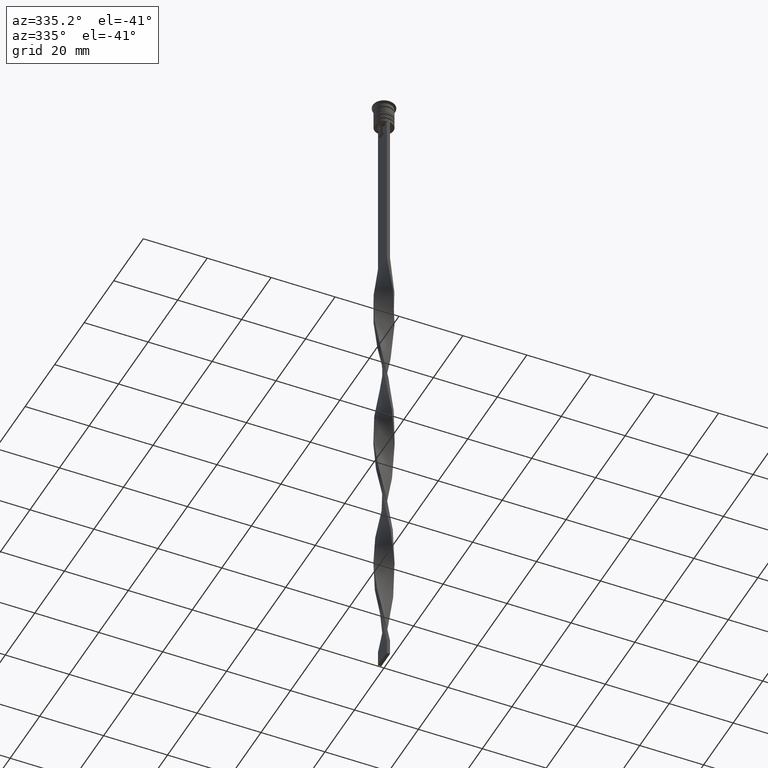
[diagram: clean part render]
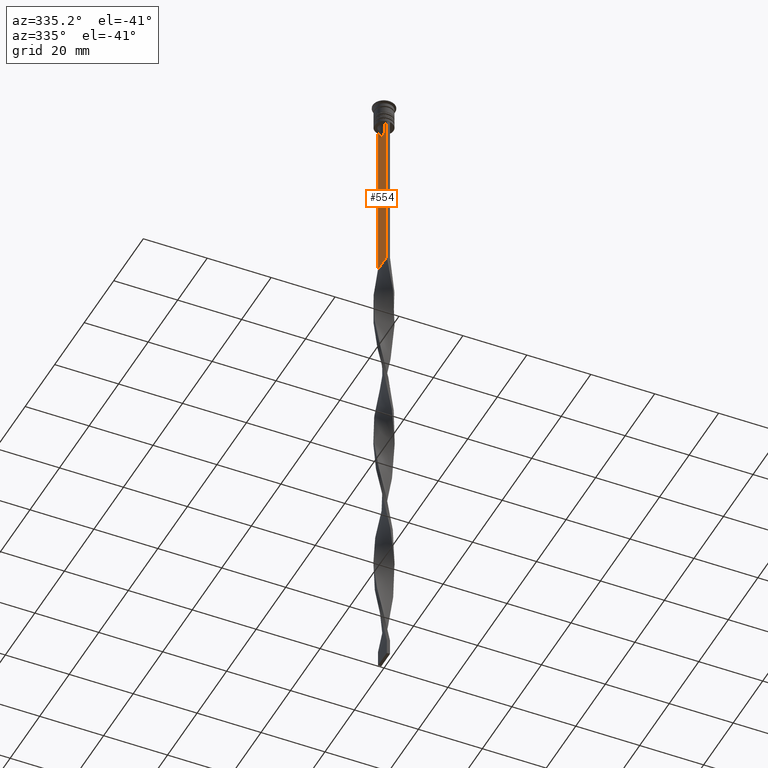
[diagram: same view with one face highlighted and labeled with its STEP entity id]
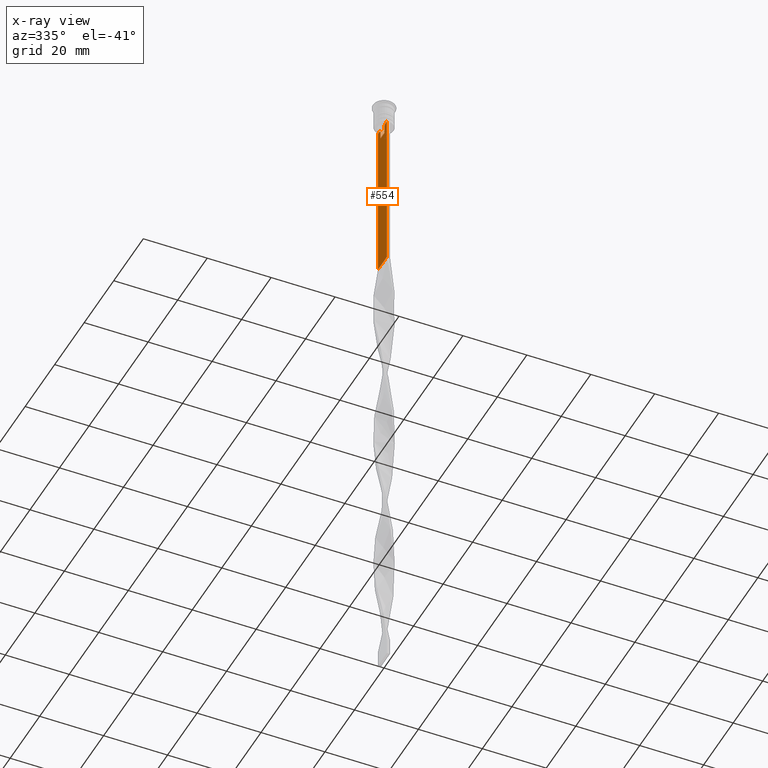
[diagram: x-ray of the same camera — body ghosted, the highlighted face saturated]
A machine part, auxiliary view. The second image highlights one B-rep face of the part: STEP entity #554.
The next image is the same camera in x-ray: the body ghosted, the highlighted face saturated — about 0% of this face is hidden behind the body in this view.
In plain terms, the highlighted planar face has unit normal (-1, 0, 0).
Its self-contained STEP definition (entity closure, byte-faithful):
#10 = DIRECTION ( 'NONE',  ( -1.000000000000000000, 0.000000000000000000, 0.000000000000000000 ) ) ;
#54 = EDGE_CURVE ( 'NONE', #3333, #358, #1027, .T. ) ;
#102 = EDGE_CURVE ( 'NONE', #216, #1409, #1285, .T. ) ;
#143 = VECTOR ( 'NONE', #1550, 1000.000000000000000 ) ;
#173 = CARTESIAN_POINT ( 'NONE',  ( -0.5000000000000001110, 1.659046061654642523, -7.667851756010361619 ) ) ;
#185 = ORIENTED_EDGE ( 'NONE', *, *, #2996, .F. ) ;
#216 = VERTEX_POINT ( 'NONE', #3561 ) ;
#255 = FACE_OUTER_BOUND ( 'NONE', #719, .T. ) ;
#348 = CARTESIAN_POINT ( 'NONE',  ( -0.5000000000000001110, -1.307669683062199217, -8.000000000000000000 ) ) ;
#358 = VERTEX_POINT ( 'NONE', #3136 ) ;
#365 = B_SPLINE_CURVE_WITH_KNOTS ( 'NONE', 3,
 ( #956, #1823, #381, #1269 ),
 .UNSPECIFIED., .F., .F.,
 ( 4, 4 ),
 ( 0.007225659348748070081, 0.007950554640278040958 ),
 .UNSPECIFIED. ) ;
#381 = CARTESIAN_POINT ( 'NONE',  ( -0.5000000000000001110, -1.659011726860414093, -7.667884880598472286 ) ) ;
#397 = ORIENTED_EDGE ( 'NONE', *, *, #801, .F. ) ;
#446 = VECTOR ( 'NONE', #1925, 1000.000000000000000 ) ;
#451 = VECTOR ( 'NONE', #1313, 1000.000000000000000 ) ;
#461 = CARTESIAN_POINT ( 'NONE',  ( -0.5000000000000001110, -3.000000000000000000, -7.500000000000000000 ) ) ;
#554 = ADVANCED_FACE ( 'NONE', ( #255 ), #1406, .T. ) ;
#603 = EDGE_CURVE ( 'NONE', #1013, #1015, #1960, .T. ) ;
#623 = ORIENTED_EDGE ( 'NONE', *, *, #3114, .F. ) ;
#683 = CARTESIAN_POINT ( 'NONE',  ( -0.5000000000000001110, 3.000000000000000000, -58.50000000000000000 ) ) ;
#718 = CARTESIAN_POINT ( 'NONE',  ( -0.5000000000000001110, 3.000000000000000000, -1.417237469701779329 ) ) ;
#719 = EDGE_LOOP ( 'NONE', ( #2857, #397, #185, #1725, #833, #1211, #3613, #3657, #1638, #1331, #3090, #623 ) ) ;
#794 = CARTESIAN_POINT ( 'NONE',  ( -0.5000000000000001110, 2.856571371417139904, -7.500000000000000000 ) ) ;
#801 = EDGE_CURVE ( 'NONE', #3606, #216, #3446, .T. ) ;
#831 = DIRECTION ( 'NONE',  ( 0.000000000000000000, -1.000000000000000000, 0.000000000000000000 ) ) ;
#833 = ORIENTED_EDGE ( 'NONE', *, *, #2077, .F. ) ;
#956 = CARTESIAN_POINT ( 'NONE',  ( -0.5000000000000001110, -1.307669683062199217, -8.000000000000000000 ) ) ;
#997 = VECTOR ( 'NONE', #3447, 1000.000000000000000 ) ;
#998 = VECTOR ( 'NONE', #831, 1000.000000000000000 ) ;
#1013 = VERTEX_POINT ( 'NONE', #2435 ) ;
#1015 = VERTEX_POINT ( 'NONE', #348 ) ;
#1027 = LINE ( 'NONE', #461, #2254 ) ;
#1037 = EDGE_CURVE ( 'NONE', #358, #1643, #2989, .T. ) ;
#1062 = LINE ( 'NONE', #2537, #1349 ) ;
#1070 = CARTESIAN_POINT ( 'NONE',  ( -0.5000000000000001110, 1.307669683062199217, -10.49999999999999822 ) ) ;
#1091 = CARTESIAN_POINT ( 'NONE',  ( -0.5000000000000001110, -1.307669683062199217, 0.000000000000000000 ) ) ;
#1211 = ORIENTED_EDGE ( 'NONE', *, *, #2190, .F. ) ;
#1235 = AXIS2_PLACEMENT_3D ( 'NONE', #3397, #10, #3166 ) ;
#1269 = CARTESIAN_POINT ( 'NONE',  ( -0.5000000000000001110, -1.833030277982335532, -7.500000000000000000 ) ) ;
#1285 = B_SPLINE_CURVE_WITH_KNOTS ( 'NONE', 3,
 ( #2420, #173, #1308, #1895 ),
 .UNSPECIFIED., .F., .F.,
 ( 4, 4 ),
 ( 0.003278537493109840491, 0.004003794023484932504 ),
 .UNSPECIFIED. ) ;
#1289 = CARTESIAN_POINT ( 'NONE',  ( -0.5000000000000001110, -1.833030277982335532, -7.500000000000000000 ) ) ;
#1308 = CARTESIAN_POINT ( 'NONE',  ( -0.5000000000000001110, 1.484355510416485391, -7.834966642958598015 ) ) ;
#1313 = DIRECTION ( 'NONE',  ( 0.000000000000000000, -1.000000000000000000, 0.000000000000000000 ) ) ;
#1331 = ORIENTED_EDGE ( 'NONE', *, *, #603, .F. ) ;
#1349 = VECTOR ( 'NONE', #3402, 1000.000000000000000 ) ;
#1406 = PLANE ( 'NONE',  #1235 ) ;
#1409 = VERTEX_POINT ( 'NONE', #1703 ) ;
#1462 = LINE ( 'NONE', #2351, #997 ) ;
#1521 = CARTESIAN_POINT ( 'NONE',  ( -0.5000000000000001110, -3.000000000000000000, -58.50000000000000000 ) ) ;
#1550 = DIRECTION ( 'NONE',  ( 0.000000000000000000, 1.000000000000000000, 0.000000000000000000 ) ) ;
#1569 = LINE ( 'NONE', #718, #446 ) ;
#1638 = ORIENTED_EDGE ( 'NONE', *, *, #3395, .F. ) ;
#1643 = VERTEX_POINT ( 'NONE', #3365 ) ;
#1658 = EDGE_CURVE ( 'NONE', #2728, #2350, #1569, .T. ) ;
#1703 = CARTESIAN_POINT ( 'NONE',  ( -0.5000000000000001110, 1.307669683062199217, -8.000000000000000000 ) ) ;
#1725 = ORIENTED_EDGE ( 'NONE', *, *, #1658, .T. ) ;
#1739 = DIRECTION ( 'NONE',  ( -0.000000000000000000, -0.000000000000000000, 1.000000000000000000 ) ) ;
#1823 = CARTESIAN_POINT ( 'NONE',  ( -0.5000000000000001110, -1.484307477388859153, -7.835011508197190722 ) ) ;
#1895 = CARTESIAN_POINT ( 'NONE',  ( -0.5000000000000001110, 1.307669683062199217, -8.000000000000000000 ) ) ;
#1925 = DIRECTION ( 'NONE',  ( 0.000000000000000000, 0.000000000000000000, -1.000000000000000000 ) ) ;
#1960 = LINE ( 'NONE', #1091, #2016 ) ;
#2016 = VECTOR ( 'NONE', #1739, 1000.000000000000000 ) ;
#2077 = EDGE_CURVE ( 'NONE', #3241, #2350, #3263, .T. ) ;
#2190 = EDGE_CURVE ( 'NONE', #1643, #3241, #1062, .T. ) ;
#2222 = LINE ( 'NONE', #3104, #451 ) ;
#2254 = VECTOR ( 'NONE', #2991, 1000.000000000000000 ) ;
#2260 = VECTOR ( 'NONE', #3315, 1000.000000000000000 ) ;
#2349 = CARTESIAN_POINT ( 'NONE',  ( -0.5000000000000001110, -3.000000000000000000, -7.500000000000000000 ) ) ;
#2350 = VERTEX_POINT ( 'NONE', #683 ) ;
#2351 = CARTESIAN_POINT ( 'NONE',  ( -0.5000000000000001110, 1.307669683062199217, 0.000000000000000000 ) ) ;
#2420 = CARTESIAN_POINT ( 'NONE',  ( -0.5000000000000001110, 1.833030277982335532, -7.500000000000000000 ) ) ;
#2435 = CARTESIAN_POINT ( 'NONE',  ( -0.5000000000000001110, -1.307669683062199217, -10.49999999999999822 ) ) ;
#2537 = CARTESIAN_POINT ( 'NONE',  ( -0.5000000000000001110, -3.000000000000000000, -1.417237469701779329 ) ) ;
#2620 = VECTOR ( 'NONE', #3370, 1000.000000000000000 ) ;
#2728 = VERTEX_POINT ( 'NONE', #3689 ) ;
#2857 = ORIENTED_EDGE ( 'NONE', *, *, #102, .F. ) ;
#2973 = CARTESIAN_POINT ( 'NONE',  ( -0.5000000000000001110, -3.000000000000000000, -58.50000000000000000 ) ) ;
#2981 = VERTEX_POINT ( 'NONE', #1070 ) ;
#2989 = LINE ( 'NONE', #3594, #2260 ) ;
#2991 = DIRECTION ( 'NONE',  ( 0.000000000000000000, -1.000000000000000000, 0.000000000000000000 ) ) ;
#2996 = EDGE_CURVE ( 'NONE', #2728, #3606, #2222, .T. ) ;
#3090 = ORIENTED_EDGE ( 'NONE', *, *, #3599, .F. ) ;
#3104 = CARTESIAN_POINT ( 'NONE',  ( -0.5000000000000001110, -3.000000000000000000, -7.500000000000000000 ) ) ;
#3114 = EDGE_CURVE ( 'NONE', #1409, #2981, #1462, .T. ) ;
#3136 = CARTESIAN_POINT ( 'NONE',  ( -0.5000000000000001110, -2.856571371417139904, -7.500000000000000000 ) ) ;
#3166 = DIRECTION ( 'NONE',  ( 0.000000000000000000, 0.000000000000000000, 1.000000000000000000 ) ) ;
#3241 = VERTEX_POINT ( 'NONE', #1521 ) ;
#3263 = LINE ( 'NONE', #2973, #143 ) ;
#3315 = DIRECTION ( 'NONE',  ( 0.000000000000000000, -1.000000000000000000, 0.000000000000000000 ) ) ;
#3316 = CARTESIAN_POINT ( 'NONE',  ( -0.5000000000000001110, 1.399999999999997691, -10.49999999999999822 ) ) ;
#3333 = VERTEX_POINT ( 'NONE', #1289 ) ;
#3365 = CARTESIAN_POINT ( 'NONE',  ( -0.5000000000000001110, -3.000000000000000000, -7.500000000000000000 ) ) ;
#3370 = DIRECTION ( 'NONE',  ( 0.000000000000000000, -1.000000000000000000, 0.000000000000000000 ) ) ;
#3395 = EDGE_CURVE ( 'NONE', #1015, #3333, #365, .T. ) ;
#3397 = CARTESIAN_POINT ( 'NONE',  ( -0.5000000000000001110, -3.000000000000000000, -1.417237469701779329 ) ) ;
#3402 = DIRECTION ( 'NONE',  ( 0.000000000000000000, 0.000000000000000000, -1.000000000000000000 ) ) ;
#3446 = LINE ( 'NONE', #2349, #998 ) ;
#3447 = DIRECTION ( 'NONE',  ( 0.000000000000000000, 0.000000000000000000, -1.000000000000000000 ) ) ;
#3561 = CARTESIAN_POINT ( 'NONE',  ( -0.5000000000000001110, 1.833030277982335532, -7.500000000000000000 ) ) ;
#3594 = CARTESIAN_POINT ( 'NONE',  ( -0.5000000000000001110, -3.000000000000000000, -7.500000000000000000 ) ) ;
#3599 = EDGE_CURVE ( 'NONE', #2981, #1013, #3680, .T. ) ;
#3606 = VERTEX_POINT ( 'NONE', #794 ) ;
#3613 = ORIENTED_EDGE ( 'NONE', *, *, #1037, .F. ) ;
#3657 = ORIENTED_EDGE ( 'NONE', *, *, #54, .F. ) ;
#3680 = LINE ( 'NONE', #3316, #2620 ) ;
#3689 = CARTESIAN_POINT ( 'NONE',  ( -0.5000000000000001110, 3.000000000000000000, -7.500000000000000000 ) ) ;